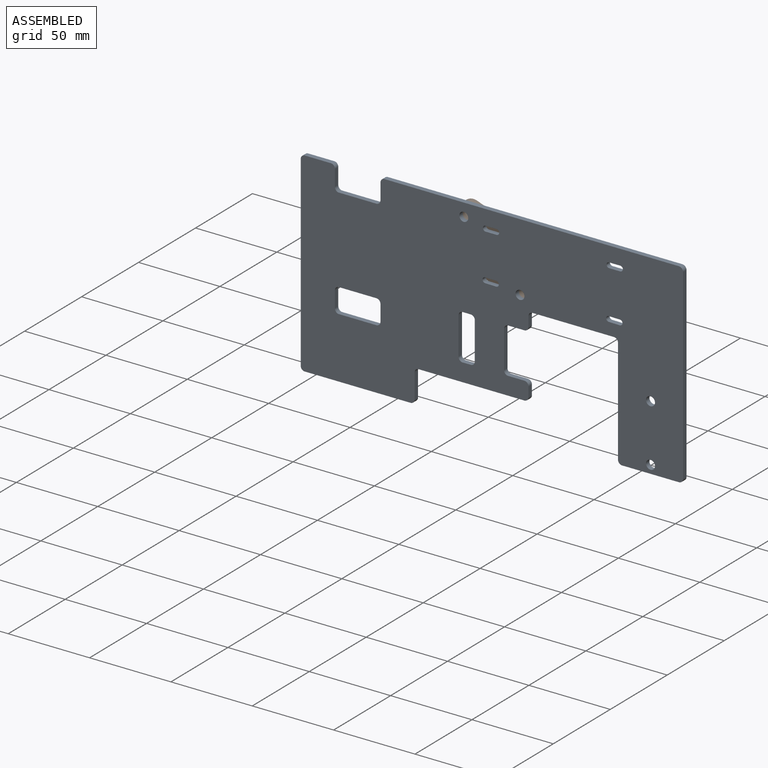
[diagram: assembled view]
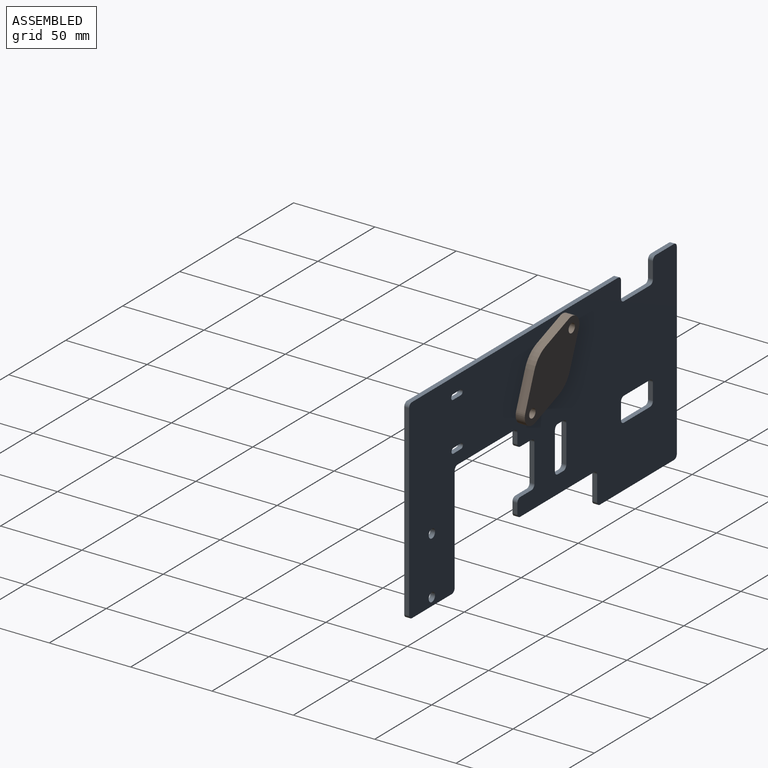
[diagram: assembled view, second angle]
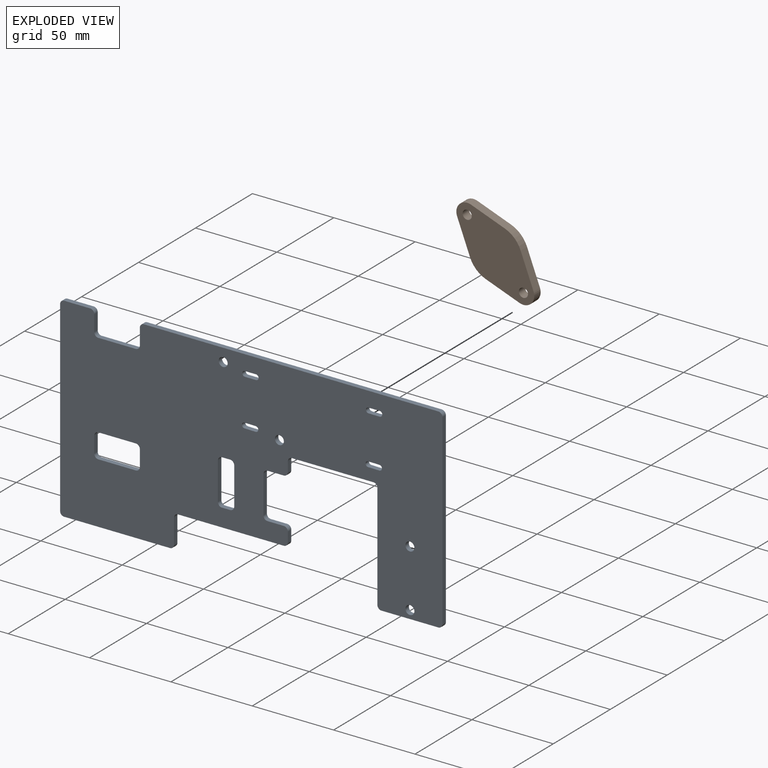
[diagram: exploded view]
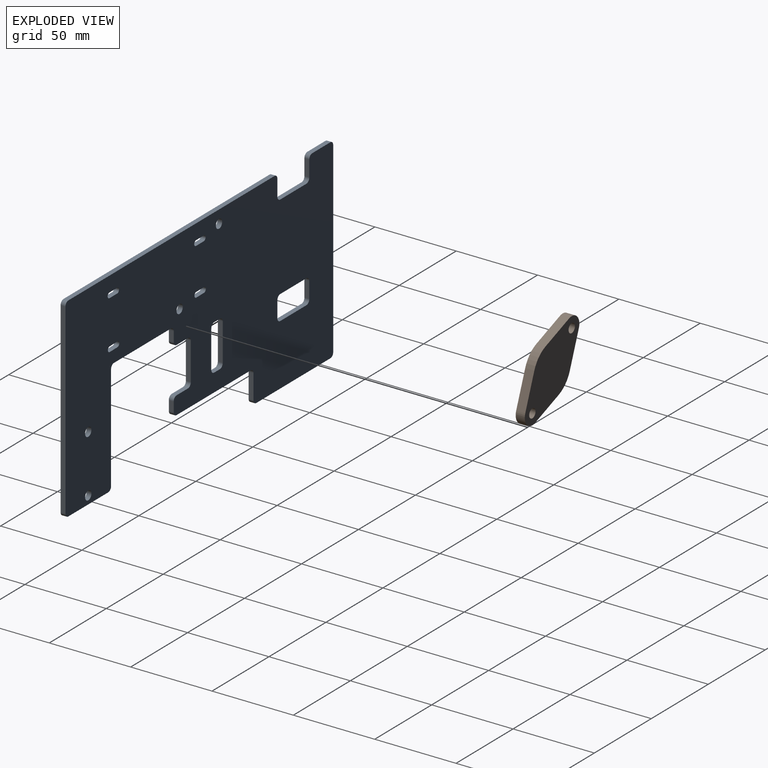
[diagram: exploded view, second angle]
ASSEMBLY  parts=2 mates=3
PART A: 74 faces, bbox 235x3x120 mm
  f0: plane 235x120mm, normal (0,-1,0), area 21201.1mm2, adj f2,f3,f4,f5,f6,f7,f8,f9
  f1: plane 235x120mm, normal (0,1,0), area 21201.1mm2, adj f2,f3,f4,f5,f6,f7,f8,f9
  f2: plane 115x3mm, normal (-1,0,0), area 345mm2, adj f0,f1,f3,f37
  f3: cylinder r=2.5mm len=3mm, axis (0,1,0), area 11.8mm2, adj f0,f1,f2,f4
  f4: plane 65x3mm, normal (0,0,-1), area 195mm2, adj f0,f1,f3,f5
  f5: cylinder r=2.5mm len=3mm, axis (0,1,0), area 11.8mm2, adj f0,f1,f4,f6
  f6: plane 15x3mm, normal (1,0,0), area 45mm2, adj f0,f1,f5,f7
  f7: cylinder r=2.5mm len=3mm, axis (0,1,0), area 11.8mm2, adj f0,f1,f6,f8
  f8: plane 65x3mm, normal (0,0,-1), area 195mm2, adj f0,f1,f7,f9
  f9: cylinder r=2.5mm len=3mm, axis (0,1,0), area 11.8mm2, adj f0,f1,f8,f10
  f10: plane 6x3mm, normal (1,0,0), area 18mm2, adj f0,f1,f9,f11
  f11: cylinder r=2.5mm len=3mm, axis (0,1,0), area 11.8mm2, adj f0,f1,f10,f12
  f12: plane 10x3mm, normal (0,0,1), area 30mm2, adj f0,f1,f11,f13
  f13: cylinder r=2.5mm len=3mm, axis (0,1,0), area 11.8mm2, adj f0,f1,f12,f14
  f14: plane 23x3mm, normal (1,0,0), area 69mm2, adj f0,f1,f13,f15
  f15: cylinder r=2.5mm len=3mm, axis (0,1,0), area 11.8mm2, adj f0,f1,f14,f16
  f16: plane 10x3mm, normal (0,0,-1), area 30mm2, adj f0,f1,f15,f17
  f17: cylinder r=2.5mm len=3mm, axis (0,1,0), area 11.8mm2, adj f0,f1,f16,f18
  f18: plane 6x3mm, normal (1,0,0), area 18mm2, adj f0,f1,f17,f19
  f19: cylinder r=2.5mm len=3mm, axis (0,1,0), area 11.8mm2, adj f0,f1,f18,f20
  f20: plane 50x3mm, normal (0,0,-1), area 150mm2, adj f0,f1,f19,f21
  f21: cylinder r=2.5mm len=3mm, axis (0,1,0), area 11.8mm2, adj f0,f1,f20,f22
  f22: plane 65x3mm, normal (-1,0,0), area 195mm2, adj f0,f1,f21,f23
  f23: cylinder r=2.5mm len=3mm, axis (0,1,0), area 11.8mm2, adj f0,f1,f22,f24
  f24: plane 35x3mm, normal (0,0,-1), area 105mm2, adj f0,f1,f23,f25
  f25: cylinder r=2.5mm len=3mm, axis (0,1,0), area 11.8mm2, adj f0,f1,f24,f26
  f26: plane 115x3mm, normal (1,0,0), area 345mm2, adj f0,f1,f25,f27
  f27: cylinder r=2.5mm len=3mm, axis (0,1,0), area 11.8mm2, adj f0,f1,f26,f28
  f28: plane 181x3mm, normal (0,0,1), area 543mm2, adj f0,f1,f27,f29
  f29: cylinder r=2.5mm len=3mm, axis (0,1,0), area 11.8mm2, adj f0,f1,f28,f30
  f30: plane 10x3mm, normal (-1,0,0), area 30mm2, adj f0,f1,f29,f31
  f31: cylinder r=2.5mm len=3mm, axis (0,1,0), area 11.8mm2, adj f0,f1,f30,f32
  f32: plane 23x3mm, normal (0,0,1), area 69mm2, adj f0,f1,f31,f33
  f33: cylinder r=2.5mm len=3mm, axis (0,1,0), area 11.8mm2, adj f0,f1,f32,f34
  f34: plane 10x3mm, normal (1,0,0), area 30mm2, adj f0,f1,f33,f35
  f35: cylinder r=2.5mm len=3mm, axis (0,1,0), area 11.8mm2, adj f0,f1,f34,f36
  f36: plane 16x3mm, normal (0,0,1), area 48mm2, adj f0,f1,f35,f37
  f37: cylinder r=2.5mm len=3mm, axis (0,1,0), area 11.8mm2, adj f0,f1,f2,f36
  f38: plane 5x3mm, normal (0,0,1), area 15mm2, adj f0,f1,f39,f45
  f39: cylinder r=2.5mm len=3mm, axis (0,-1,0), area 11.8mm2, adj f0,f1,f38,f40
  f40: plane 23x3mm, normal (-1,0,0), area 69mm2, adj f0,f1,f39,f41
  f41: cylinder r=2.5mm len=3mm, axis (0,-1,0), area 11.8mm2, adj f0,f1,f40,f42
  f42: plane 5x3mm, normal (0,0,-1), area 15mm2, adj f0,f1,f41,f43
  f43: cylinder r=2.5mm len=3mm, axis (0,-1,0), area 11.8mm2, adj f0,f1,f42,f44
  f44: plane 23x3mm, normal (1,0,0), area 69mm2, adj f0,f1,f43,f45
  f45: cylinder r=2.5mm len=3mm, axis (0,-1,0), area 11.8mm2, adj f0,f1,f38,f44
  f46: plane 10x3mm, normal (-1,0,0), area 30mm2, adj f0,f1,f47,f53
  f47: cylinder r=2.5mm len=3mm, axis (0,-1,0), area 11.8mm2, adj f0,f1,f46,f48
  f48: plane 23x3mm, normal (0,0,-1), area 69mm2, adj f0,f1,f47,f49
  f49: cylinder r=2.5mm len=3mm, axis (0,-1,0), area 11.8mm2, adj f0,f1,f48,f50
  f50: plane 10x3mm, normal (1,0,0), area 30mm2, adj f0,f1,f49,f51
  f51: cylinder r=2.5mm len=3mm, axis (0,-1,0), area 11.8mm2, adj f0,f1,f50,f52
  f52: plane 23x3mm, normal (0,0,1), area 69mm2, adj f0,f1,f51,f53
  f53: cylinder r=2.5mm len=3mm, axis (0,-1,0), area 11.8mm2, adj f0,f1,f46,f52
  f54: cylinder r=2.75mm len=5.5mm, axis (0,-1,0), area 51.8mm2, adj f0,f1
  f55: cylinder r=2.75mm len=5.5mm, axis (0,-1,0), area 51.8mm2, adj f0,f1
  f56: plane 6.8x3mm, normal (0,0,-1), area 20.4mm2, adj f0,f1,f57,f59
  f57: cylinder r=1.6mm len=3.2mm, axis (0,-1,0), area 15.1mm2, adj f0,f1,f56,f58
  f58: plane 6.8x3mm, normal (0,0,1), area 20.4mm2, adj f0,f1,f57,f59
  f59: cylinder r=1.6mm len=3.2mm, axis (0,-1,0), area 15.1mm2, adj f0,f1,f56,f58
  f60: plane 6.8x3mm, normal (-0.02,0,-1), area 20.4mm2, adj f0,f1,f61,f63
  f61: cylinder r=1.6mm len=3.2mm, axis (0,-1,0), area 15.1mm2, adj f0,f1,f60,f62
  f62: plane 6.8x3mm, normal (0.02,0,1), area 20.4mm2, adj f0,f1,f61,f63
  f63: cylinder r=1.6mm len=3.2mm, axis (0,-1,0), area 15.1mm2, adj f0,f1,f60,f62
  f64: plane 6.8x3mm, normal (0,0,-1), area 20.4mm2, adj f0,f1,f65,f67
  f65: cylinder r=1.6mm len=3.2mm, axis (0,-1,0), area 15.1mm2, adj f0,f1,f64,f66
  f66: plane 6.8x3mm, normal (0,0,1), area 20.4mm2, adj f0,f1,f65,f67
  f67: cylinder r=1.6mm len=3.2mm, axis (0,-1,0), area 15.1mm2, adj f0,f1,f64,f66
  f68: plane 6.8x3mm, normal (-0.02,0,-1), area 20.4mm2, adj f0,f1,f69,f71
  f69: cylinder r=1.6mm len=3.2mm, axis (0,-1,0), area 15.1mm2, adj f0,f1,f68,f70
  f70: plane 6.8x3mm, normal (0.02,0,1), area 20.4mm2, adj f0,f1,f69,f71
  f71: cylinder r=1.6mm len=3.2mm, axis (0,-1,0), area 15.1mm2, adj f0,f1,f68,f70
  f72: cylinder r=2.75mm len=5.5mm, axis (0,-1,0), area 51.8mm2, adj f0,f1
  f73: cylinder r=2.75mm len=5.5mm, axis (0,-1,0), area 51.8mm2, adj f0,f1
PART B: 12 faces, bbox 61.9x33.4x5.6 mm
  f0: plane 20.17x9.11mm, normal (-0.41,-0.91,0), area 123.7mm2, adj f1,f9,f10,f11
  f1: cylinder r=16.68mm len=13.73mm, axis (0,0,-1), area 79.1mm2, adj f0,f2,f10,f11
  f2: plane 20.17x9.11mm, normal (0.41,-0.91,0), area 123.7mm2, adj f1,f3,f10,f11
  f3: cylinder r=6.68mm len=12.18mm, axis (0,0,-1), area 85.6mm2, adj f2,f4,f10,f11
  f4: plane 20.17x9.11mm, normal (0.41,0.91,0), area 123.7mm2, adj f3,f5,f10,f11
  f5: cylinder r=16.68mm len=13.73mm, axis (0,0,-1), area 79.1mm2, adj f4,f6,f10,f11
  f6: plane 20.17x9.11mm, normal (-0.41,0.91,0), area 123.7mm2, adj f5,f9,f10,f11
  f7: cylinder r=2.79mm len=5.59mm, axis (0,0,-1), area 98.1mm2, adj f10,f11
  f8: cylinder r=2.79mm len=5.59mm, axis (0,0,-1), area 98.1mm2, adj f10,f11
  f9: cylinder r=6.68mm len=12.18mm, axis (0,0,-1), area 85.6mm2, adj f0,f6,f10,f11
  f10: plane 61.93x33.35mm, normal (0,0,1), area 1322.9mm2, adj f0,f1,f2,f3,f4,f5,f6,f7
  f11: plane 61.93x33.35mm, normal (0,0,-1), area 1322.9mm2, adj f0,f1,f2,f3,f4,f5,f6,f7
PLACE A t=(13.05,37.53,-7.58)mm fixed
PLACE B rot(axis=(0.86,0.36,-0.36),98.3deg) t=(13.05,43.12,27.42)mm
MATE cylindrical B.f3 <-> A.f54  axis (0,1,0) through (30.33,43.12,10.36)mm
MATE cylindrical A.f55 <-> B.f7  axis (0,1,0) through (-4.23,37.53,44.49)mm
MATE planar A.f54 <-> B.f5  axis (0,1,0) through (30.33,37.53,10.36)mm
